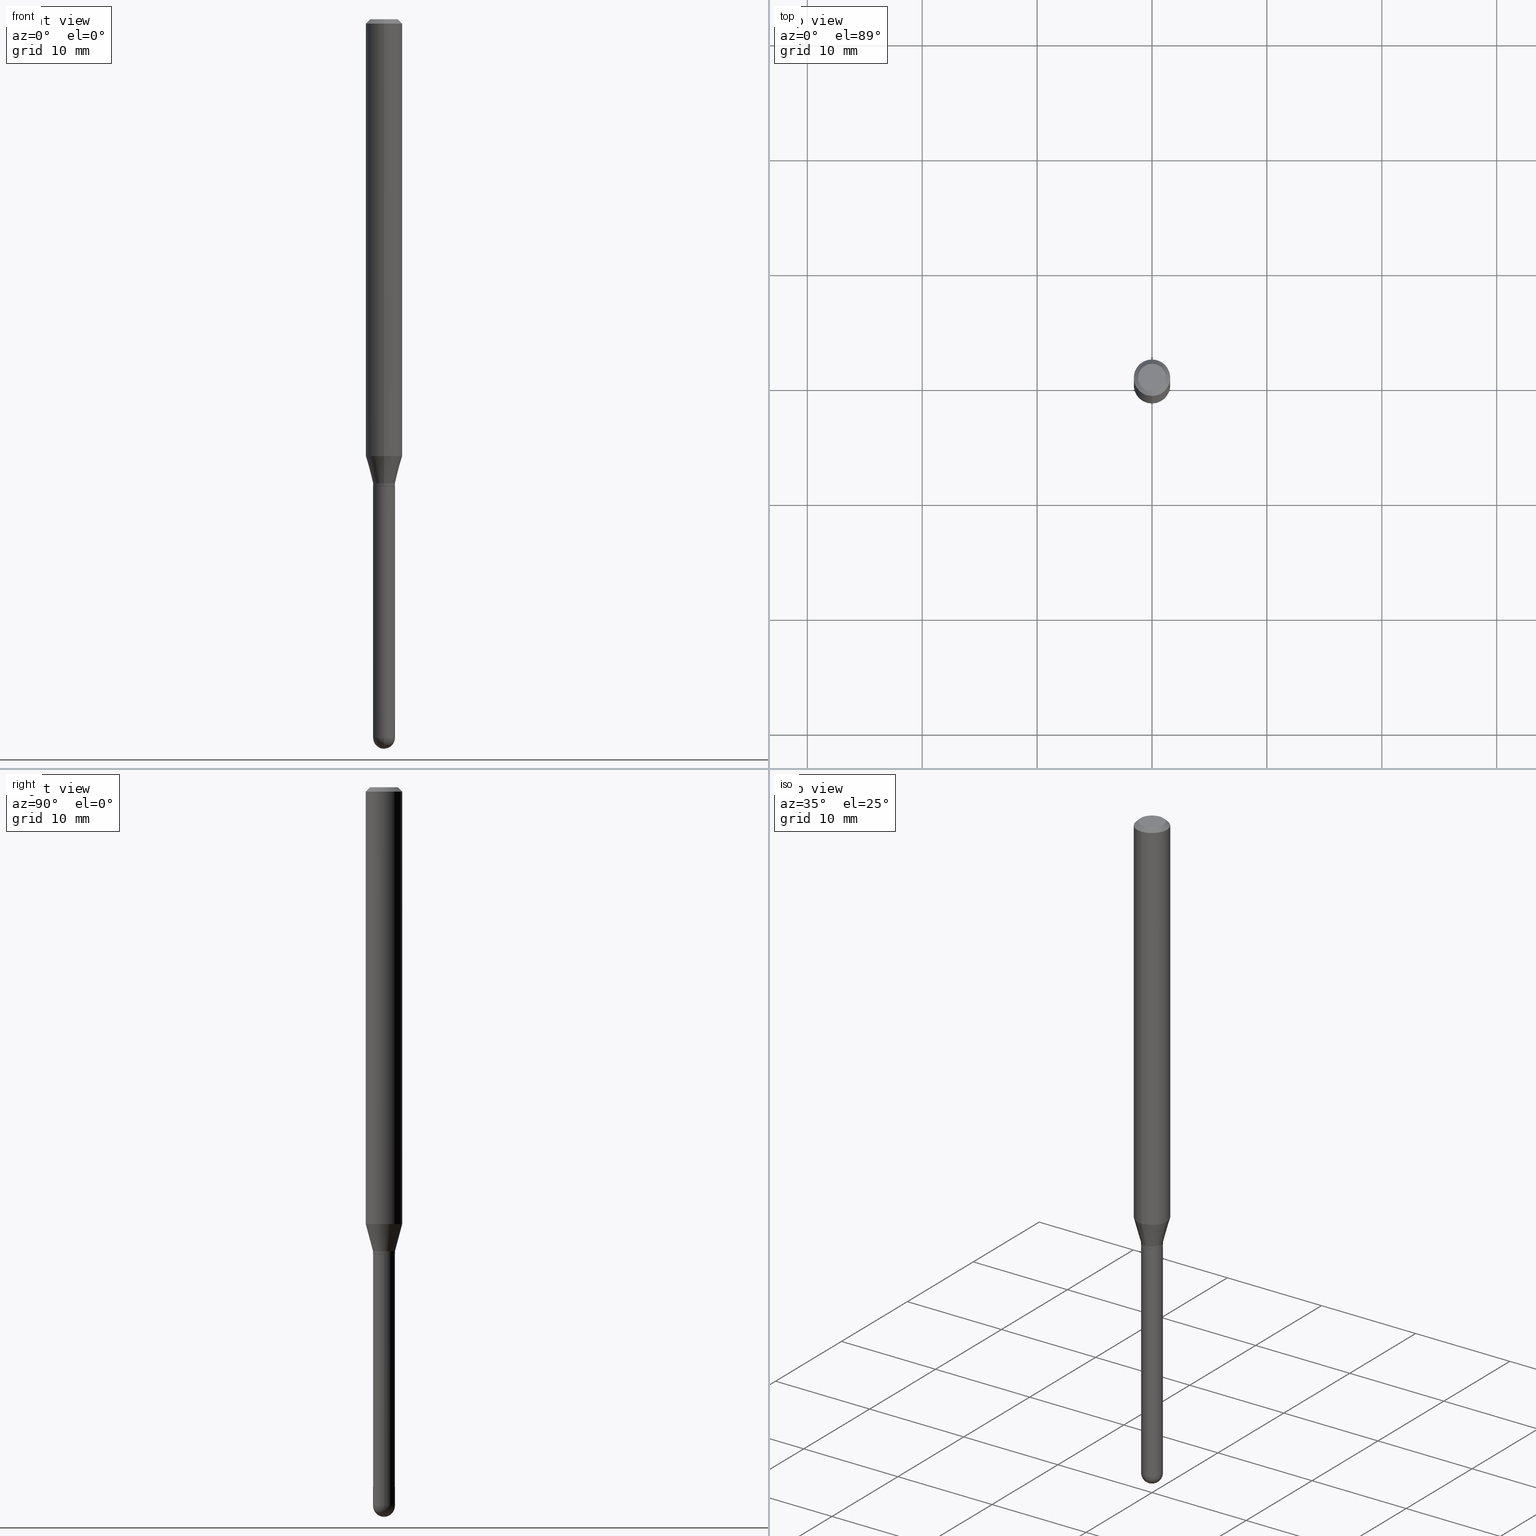
[diagram: canonical four-view strip — front | top / right | iso, engineering-drawing reading convention]
A machine part, canonical four-view strip (front | top / right | iso — engineering-drawing reading convention). The complete STEP part file that produces these views, byte-faithful:
ISO-10303-21;
HEADER;
FILE_DESCRIPTION (( 'STEP AP203' ),
    '1' );
FILE_NAME ('02789.STEP',
    '2024-03-07T21:33:03',
    ( '' ),
    ( '' ),
    'SwSTEP 2.0',
    'SolidWorks 2023',
    '' );
FILE_SCHEMA (( 'CONFIG_CONTROL_DESIGN' ));
ENDSEC;

DATA;
#1 = ORIENTED_EDGE ( 'NONE', *, *, #374, .F. ) ;
#2 = VECTOR ( 'NONE', #90, 39.37007874015748143 ) ;
#3 = CARTESIAN_POINT ( 'NONE',  ( 3.911429841874183289E-29, -5.584764046532069361E-15, -1.599500000000000144 ) ) ;
#4 = ADVANCED_FACE ( 'NONE', ( #22 ), #323, .T. ) ;
#5 = EDGE_CURVE ( 'NONE', #335, #242, #139, .T. ) ;
#6 = ORIENTED_EDGE ( 'NONE', *, *, #295, .F. ) ;
#7 = COORDINATED_UNIVERSAL_TIME_OFFSET ( 5, 0, .BEHIND. ) ;
#8 = VERTEX_POINT ( 'NONE', #108 ) ;
#9 = CARTESIAN_POINT ( 'NONE',  ( 6.018760061646477031E-29, -8.602365222398048274E-15, -2.462500000000000355 ) ) ;
#10 = CARTESIAN_POINT ( 'NONE',  ( -2.618611004131955586E-16, -0.03750000000000547340, -1.590000000000000302 ) ) ;
#11 = ORIENTED_EDGE ( 'NONE', *, *, #159, .F. ) ;
#12 = VERTEX_POINT ( 'NONE', #308 ) ;
#13 = VECTOR ( 'NONE', #482, 39.37007874015748143 ) ;
#14 = DIRECTION ( 'NONE',  ( -2.445468806185136597E-29, 3.491481338843145583E-15, 1.000000000000000000 ) ) ;
#15 = APPROVAL_DATE_TIME ( #21, #140 ) ;
#16 = CYLINDRICAL_SURFACE ( 'NONE', #334, 0.06250000000000000000 ) ;
#17 = ORIENTED_EDGE ( 'NONE', *, *, #458, .T. ) ;
#18 = FACE_OUTER_BOUND ( 'NONE', #346, .T. ) ;
#19 = SPHERICAL_SURFACE ( 'NONE', #27, 0.03749999999999963085 ) ;
#20 = AXIS2_PLACEMENT_3D ( 'NONE', #508, #212, #370 ) ;
#21 = DATE_AND_TIME ( #24, #34 ) ;
#22 = FACE_OUTER_BOUND ( 'NONE', #38, .T. ) ;
#23 = CARTESIAN_POINT ( 'NONE',  ( 3.888198467383526217E-29, -5.551594144411373285E-15, -1.590000000000000302 ) ) ;
#24 = CALENDAR_DATE ( 2024, 7, 3 ) ;
#25 = ADVANCED_FACE ( 'NONE', ( #471 ), #16, .T. ) ;
#26 = EDGE_LOOP ( 'NONE', ( #123, #196 ) ) ;
#27 = AXIS2_PLACEMENT_3D ( 'NONE', #59, #208, #282 ) ;
#28 = AXIS2_PLACEMENT_3D ( 'NONE', #333, #88, #85 ) ;
#29 = CC_DESIGN_PERSON_AND_ORGANIZATION_ASSIGNMENT ( #277, #454, ( #310 ) ) ;
#30 = CYLINDRICAL_SURFACE ( 'NONE', #441, 0.03749999999999999861 ) ;
#31 = CARTESIAN_POINT ( 'NONE',  ( 0.000000000000000000, 0.000000000000000000, 0.000000000000000000 ) ) ;
#32 = FACE_OUTER_BOUND ( 'NONE', #419, .T. ) ;
#33 = VECTOR ( 'NONE', #480, 39.37007874015748143 ) ;
#34 = LOCAL_TIME ( 16, 33, 3.000000000000000000, #286 ) ;
#35 = CARTESIAN_POINT ( 'NONE',  ( -0.03749999999999999861, -6.825617943615102854E-15, -2.462500000000000355 ) ) ;
#36 = EDGE_LOOP ( 'NONE', ( #110, #473, #402, #209 ) ) ;
#37 = DIRECTION ( 'NONE',  ( -1.000000000000000000, 6.982962677686265922E-15, -4.876176775795935793E-29 ) ) ;
#38 = EDGE_LOOP ( 'NONE', ( #1, #76, #315, #6 ) ) ;
#39 = DIRECTION ( 'NONE',  ( 1.000000000000000000, 0.000000000000000000, 0.000000000000000000 ) ) ;
#40 = EDGE_CURVE ( 'NONE', #232, #283, #258, .T. ) ;
#41 = VECTOR ( 'NONE', #240, 39.37007874015748143 ) ;
#42 = CIRCLE ( 'NONE', #28, 0.03749999999999992228 ) ;
#43 = APPROVAL_ROLE ( '' ) ;
#44 = DIRECTION ( 'NONE',  ( -2.445407841121714542E-29, 3.491568644283881835E-15, 1.000000000000000000 ) ) ;
#45 = DIRECTION ( 'NONE',  ( 2.438088387897960049E-29, -3.491481338843145188E-15, -1.000000000000000000 ) ) ;
#46 = DIRECTION ( 'NONE',  ( -4.937700262164674260E-15, -0.7071067811865632269, 0.7071067811865319186 ) ) ;
#47 = VERTEX_POINT ( 'NONE', #312 ) ;
#48 = EDGE_CURVE ( 'NONE', #66, #214, #197, .T. ) ;
#49 = DIRECTION ( 'NONE',  ( -2.445407841121714542E-29, 3.491568644283881835E-15, 1.000000000000000000 ) ) ;
#50 = DIRECTION ( 'NONE',  ( -2.445407841121714542E-29, 3.491568644283881835E-15, 1.000000000000000000 ) ) ;
#51 = DIRECTION ( 'NONE',  ( -2.445407841121714542E-29, 3.491568644283881835E-15, 1.000000000000000000 ) ) ;
#52 = AXIS2_PLACEMENT_3D ( 'NONE', #436, #50, #198 ) ;
#53 = ORIENTED_EDGE ( 'NONE', *, *, #511, .F. ) ;
#54 = AXIS2_PLACEMENT_3D ( 'NONE', #276, #92, #437 ) ;
#55 = ORIENTED_EDGE ( 'NONE', *, *, #60, .F. ) ;
#56 = COORDINATED_UNIVERSAL_TIME_OFFSET ( 5, 0, .BEHIND. ) ;
#57 = ORIENTED_EDGE ( 'NONE', *, *, #458, .F. ) ;
#58 = CARTESIAN_POINT ( 'NONE',  ( -2.583696190743526501E-16, -0.03700000000000558398, -1.600000000000000311 ) ) ;
#59 = CARTESIAN_POINT ( 'NONE',  ( 6.018760061646477031E-29, -8.602365222398048274E-15, -2.462500000000000355 ) ) ;
#60 = EDGE_CURVE ( 'NONE', #189, #304, #125, .T. ) ;
#61 = COORDINATED_UNIVERSAL_TIME_OFFSET ( 5, 0, .BEHIND. ) ;
#62 = VERTEX_POINT ( 'NONE', #182 ) ;
#63 = VECTOR ( 'NONE', #408, 39.37007874015748143 ) ;
#64 = AXIS2_PLACEMENT_3D ( 'NONE', #305, #45, #37 ) ;
#65 = PERSON_AND_ORGANIZATION_ROLE ( 'classification_officer' ) ;
#66 = VERTEX_POINT ( 'NONE', #328 ) ;
#67 = CC_DESIGN_DATE_AND_TIME_ASSIGNMENT ( #360, #236, ( #310 ) ) ;
#68 = AXIS2_PLACEMENT_3D ( 'NONE', #95, #243, #446 ) ;
#69 = DIRECTION ( 'NONE',  ( 2.445407841121714542E-29, -3.491568644283881835E-15, -1.000000000000000000 ) ) ;
#70 = LOCAL_TIME ( 16, 33, 3.000000000000000000, #287 ) ;
#71 = VERTEX_POINT ( 'NONE', #423 ) ;
#72 = FACE_OUTER_BOUND ( 'NONE', #146, .T. ) ;
#73 = DIRECTION ( 'NONE',  ( -6.982962677686265133E-15, -1.000000000000000000, 0.000000000000000000 ) ) ;
#74 = DIRECTION ( 'NONE',  ( 4.937700262164548042E-15, 0.7071067811865451302, -0.7071067811865499042 ) ) ;
#75 = PERSON ( 'UNSPECIFIED', 'UNSPECIFIED', 'UNSPECIFIED', ('UNSPECIFIED'), ('UNSPECIFIED'), ('UNSPECIFIED') ) ;
#76 = ORIENTED_EDGE ( 'NONE', *, *, #490, .T. ) ;
#77 = APPROVAL ( #388, 'UNSPECIFIED' ) ;
#78 = DIRECTION ( 'NONE',  ( -2.445407841121714542E-29, 3.491568644283881835E-15, 1.000000000000000000 ) ) ;
#79 = CIRCLE ( 'NONE', #468, 0.03749999999999999861 ) ;
#80 = DIRECTION ( 'NONE',  ( -6.982962677686265922E-15, -1.000000000000000000, 0.000000000000000000 ) ) ;
#81 = LINE ( 'NONE', #186, #498 ) ;
#82 = CARTESIAN_POINT ( 'NONE',  ( 3.911429841874183289E-29, -5.584764046532069361E-15, -1.599500000000000144 ) ) ;
#83 = ORIENTED_EDGE ( 'NONE', *, *, #354, .F. ) ;
#84 = FACE_OUTER_BOUND ( 'NONE', #117, .T. ) ;
#85 = DIRECTION ( 'NONE',  ( -6.982962677686265133E-15, -1.000000000000000000, 0.000000000000000000 ) ) ;
#86 = CARTESIAN_POINT ( 'NONE',  ( 3.660038809676187472E-29, -5.225826354946828234E-15, -1.496698729810778339 ) ) ;
#87 = FACE_OUTER_BOUND ( 'NONE', #239, .T. ) ;
#88 = DIRECTION ( 'NONE',  ( -2.445407841121714542E-29, 3.491568644283881835E-15, 1.000000000000000000 ) ) ;
#89 = EDGE_CURVE ( 'NONE', #66, #62, #175, .T. ) ;
#90 = DIRECTION ( 'NONE',  ( -2.445407841121714822E-29, 3.491568644283881835E-15, 1.000000000000000000 ) ) ;
#91 = ORIENTED_EDGE ( 'NONE', *, *, #5, .F. ) ;
#92 = DIRECTION ( 'NONE',  ( -2.445407841121714542E-29, 3.491568644283881835E-15, 1.000000000000000000 ) ) ;
#93 = ORIENTED_EDGE ( 'NONE', *, *, #466, .F. ) ;
#94 = CONICAL_SURFACE ( 'NONE', #378, 0.06250000000000000000, 0.7853981633974483900 ) ;
#95 = CARTESIAN_POINT ( 'NONE',  ( 3.912652545794744276E-29, -5.586509830854212671E-15, -1.600000000000000311 ) ) ;
#96 = AXIS2_PLACEMENT_3D ( 'NONE', #341, #469, #345 ) ;
#97 = EDGE_CURVE ( 'NONE', #142, #8, #79, .T. ) ;
#98 = ORIENTED_EDGE ( 'NONE', *, *, #217, .T. ) ;
#99 = PERSON_AND_ORGANIZATION ( #75, #163 ) ;
#100 = ORIENTED_EDGE ( 'NONE', *, *, #178, .F. ) ;
#101 = CARTESIAN_POINT ( 'NONE',  ( 3.888198467383526217E-29, -5.551594144411373285E-15, -1.590000000000000302 ) ) ;
#102 = PERSON_AND_ORGANIZATION ( #75, #163 ) ;
#103 = DESIGN_CONTEXT ( 'detailed design', #331, 'design' ) ;
#104 = ADVANCED_FACE ( 'NONE', ( #72 ), #94, .T. ) ;
#105 = ORIENTED_EDGE ( 'NONE', *, *, #89, .F. ) ;
#106 = CONICAL_SURFACE ( 'NONE', #218, 0.03749999999999992228, 0.2617993877991505736 ) ;
#107 = SHAPE_DEFINITION_REPRESENTATION ( #201, #289 ) ;
#108 = CARTESIAN_POINT ( 'NONE',  ( 2.618611004132938704E-16, 0.03749999999999121397, -2.462500000000000355 ) ) ;
#109 = PERSON_AND_ORGANIZATION ( #75, #163 ) ;
#110 = ORIENTED_EDGE ( 'NONE', *, *, #133, .T. ) ;
#111 = DIRECTION ( 'NONE',  ( 1.000000000000000000, -6.982962677686266711E-15, 4.876176775795935793E-29 ) ) ;
#112 = DIRECTION ( 'NONE',  ( 1.000000000000000000, -6.982962677686266711E-15, 4.876176775795935793E-29 ) ) ;
#113 =( GEOMETRIC_REPRESENTATION_CONTEXT ( 3 ) GLOBAL_UNCERTAINTY_ASSIGNED_CONTEXT ( ( #284 ) ) GLOBAL_UNIT_ASSIGNED_CONTEXT ( ( #300, #230, #195 ) ) REPRESENTATION_CONTEXT ( 'NONE', 'WORKASPACE' ) );
#114 = ADVANCED_FACE ( 'NONE', ( #87 ), #477, .T. ) ;
#115 = DIRECTION ( 'NONE',  ( -2.445407841121714262E-29, 3.491568644283881835E-15, 1.000000000000000000 ) ) ;
#116 = DIRECTION ( 'NONE',  ( -2.445468806185136597E-29, 3.491481338843145583E-15, 1.000000000000000000 ) ) ;
#117 = EDGE_LOOP ( 'NONE', ( #391, #447, #481, #105 ) ) ;
#118 = CARTESIAN_POINT ( 'NONE',  ( -4.364351673553916201E-16, -0.06250000000000000000, 2.182230402677425900E-16 ) ) ;
#119 = PLANE ( 'NONE',  #349 ) ;
#120 = AXIS2_PLACEMENT_3D ( 'NONE', #292, #460, #253 ) ;
#121 = CARTESIAN_POINT ( 'NONE',  ( -4.364351673553553325E-16, -0.06250000000000525968, -1.496698729810778117 ) ) ;
#122 = ORIENTED_EDGE ( 'NONE', *, *, #410, .F. ) ;
#123 = ORIENTED_EDGE ( 'NONE', *, *, #178, .T. ) ;
#124 = MECHANICAL_CONTEXT ( 'NONE', #224, 'mechanical' ) ;
#125 = CIRCLE ( 'NONE', #68, 0.03699999999999999817 ) ;
#126 = ORIENTED_EDGE ( 'NONE', *, *, #354, .T. ) ;
#127 = APPROVAL_PERSON_ORGANIZATION ( #225, #77, #43 ) ;
#128 = APPLICATION_PROTOCOL_DEFINITION ( 'international standard', 'config_control_design', 1994, #331 ) ;
#129 = CARTESIAN_POINT ( 'NONE',  ( 4.440892098500625669E-16, 0.06250000000000000000, -2.182230402677425900E-16 ) ) ;
#130 = MANIFOLD_SOLID_BREP ( 'Body-Move/Copy2[2]', #299 ) ;
#131 = APPROVAL_DATE_TIME ( #274, #77 ) ;
#132 = AXIS2_PLACEMENT_3D ( 'NONE', #347, #14, #164 ) ;
#133 = EDGE_CURVE ( 'NONE', #203, #214, #147, .T. ) ;
#134 = LOCAL_TIME ( 16, 33, 3.000000000000000000, #7 ) ;
#135 = EDGE_CURVE ( 'NONE', #47, #266, #226, .T. ) ;
#136 = DIRECTION ( 'NONE',  ( -6.982962677686265133E-15, -1.000000000000000000, 0.000000000000000000 ) ) ;
#137 = APPROVAL_ROLE ( '' ) ;
#138 = VERTEX_POINT ( 'NONE', #278 ) ;
#139 = LINE ( 'NONE', #493, #63 ) ;
#140 = APPROVAL ( #393, 'UNSPECIFIED' ) ;
#141 = AXIS2_PLACEMENT_3D ( 'NONE', #215, #69, #144 ) ;
#142 = VERTEX_POINT ( 'NONE', #204 ) ;
#143 = DIRECTION ( 'NONE',  ( -2.445407841121714542E-29, 3.491568644283881835E-15, 1.000000000000000000 ) ) ;
#144 = DIRECTION ( 'NONE',  ( 6.982962677686265922E-15, 1.000000000000000000, -3.483106191921935554E-15 ) ) ;
#145 = EDGE_CURVE ( 'NONE', #203, #232, #322, .T. ) ;
#146 = EDGE_LOOP ( 'NONE', ( #91, #83, #503, #443 ) ) ;
#147 = CIRCLE ( 'NONE', #431, 0.03749999999999992228 ) ;
#148 = CARTESIAN_POINT ( 'NONE',  ( 8.024429778485284726E-45, -1.145733113784620250E-30, -3.281428007037247014E-16 ) ) ;
#149 = LOCAL_TIME ( 16, 33, 3.000000000000000000, #61 ) ;
#150 = DIRECTION ( 'NONE',  ( -2.445407841121714542E-29, 3.491568644283881835E-15, 1.000000000000000000 ) ) ;
#151 = DIRECTION ( 'NONE',  ( -6.982962677686265922E-15, -1.000000000000000000, 3.491568644283882229E-15 ) ) ;
#152 = AXIS2_PLACEMENT_3D ( 'NONE', #31, #411, #112 ) ;
#153 = ADVANCED_FACE ( 'NONE', ( #18 ), #485, .T. ) ;
#154 = ORIENTED_EDGE ( 'NONE', *, *, #501, .T. ) ;
#155 = DIRECTION ( 'NONE',  ( -1.000000000000000000, 7.105427357601001070E-15, -4.926315508542082329E-29 ) ) ;
#156 = EDGE_CURVE ( 'NONE', #387, #47, #486, .T. ) ;
#157 = LENGTH_MEASURE_WITH_UNIT ( LENGTH_MEASURE( 0.02539999999999999897 ), #385 );
#158 = VECTOR ( 'NONE', #46, 39.37007874015748143 ) ;
#159 = EDGE_CURVE ( 'NONE', #189, #62, #170, .T. ) ;
#160 = EDGE_LOOP ( 'NONE', ( #425, #172, #100, #57, #438 ) ) ;
#161 = AXIS2_PLACEMENT_3D ( 'NONE', #3, #190, #192 ) ;
#162 = ORIENTED_EDGE ( 'NONE', *, *, #501, .F. ) ;
#163 = ORGANIZATION ( 'UNSPECIFIED', 'UNSPECIFIED', '' ) ;
#164 = DIRECTION ( 'NONE',  ( 1.000000000000000000, -6.982962677686268288E-15, 0.000000000000000000 ) ) ;
#165 = PERSON_AND_ORGANIZATION ( #75, #163 ) ;
#166 = CC_DESIGN_PERSON_AND_ORGANIZATION_ASSIGNMENT ( #267, #426, ( #362 ) ) ;
#167 = CARTESIAN_POINT ( 'NONE',  ( 3.912652545794744276E-29, -5.586509830854212671E-15, -1.600000000000000311 ) ) ;
#168 = CIRCLE ( 'NONE', #306, 0.06250000000000000000 ) ;
#169 = CC_DESIGN_SECURITY_CLASSIFICATION ( #311, ( #407 ) ) ;
#170 = LINE ( 'NONE', #58, #158 ) ;
#171 = DIRECTION ( 'NONE',  ( -2.445407841121714542E-29, 3.491568644283881835E-15, 1.000000000000000000 ) ) ;
#172 = ORIENTED_EDGE ( 'NONE', *, *, #156, .T. ) ;
#173 = DIRECTION ( 'NONE',  ( -2.445468806185136597E-29, 3.491481338843145583E-15, 1.000000000000000000 ) ) ;
#174 = EDGE_CURVE ( 'NONE', #12, #242, #279, .T. ) ;
#175 = CIRCLE ( 'NONE', #317, 0.03750000000000019290 ) ;
#176 = CARTESIAN_POINT ( 'NONE',  ( 6.018760061646477031E-29, -8.602365222398048274E-15, -2.462500000000000355 ) ) ;
#177 = AXIS2_PLACEMENT_3D ( 'NONE', #390, #271, #509 ) ;
#178 = EDGE_CURVE ( 'NONE', #266, #47, #369, .T. ) ;
#179 = FACE_OUTER_BOUND ( 'NONE', #470, .T. ) ;
#180 = ORIENTED_EDGE ( 'NONE', *, *, #227, .F. ) ;
#181 = CARTESIAN_POINT ( 'NONE',  ( 3.912652545794744276E-29, -5.586509830854212671E-15, -1.600000000000000311 ) ) ;
#182 = CARTESIAN_POINT ( 'NONE',  ( -2.618611004131981224E-16, -0.03750000000000591055, -1.599500000000000144 ) ) ;
#183 = AXIS2_PLACEMENT_3D ( 'NONE', #273, #49, #318 ) ;
#184 = FACE_OUTER_BOUND ( 'NONE', #207, .T. ) ;
#185 = APPROVAL_PERSON_ORGANIZATION ( #99, #219, #137 ) ;
#186 = CARTESIAN_POINT ( 'NONE',  ( 2.664535259100758689E-16, 0.03749999999999436423, -1.590000000000000302 ) ) ;
#187 = CARTESIAN_POINT ( 'NONE',  ( 0.03749999999999999861, -2.618611004132350016E-16, 1.828566290923475922E-30 ) ) ;
#188 = ORIENTED_EDGE ( 'NONE', *, *, #511, .T. ) ;
#189 = VERTEX_POINT ( 'NONE', #342 ) ;
#190 = DIRECTION ( 'NONE',  ( -2.445407841121714542E-29, 3.491568644283881835E-15, 1.000000000000000000 ) ) ;
#191 = CIRCLE ( 'NONE', #120, 0.03749999999999999861 ) ;
#192 = DIRECTION ( 'NONE',  ( -6.982962677686265922E-15, -1.000000000000000000, 0.000000000000000000 ) ) ;
#193 = ORIENTED_EDGE ( 'NONE', *, *, #174, .F. ) ;
#194 = CARTESIAN_POINT ( 'NONE',  ( 0.000000000000000000, 0.000000000000000000, 0.000000000000000000 ) ) ;
#195 =( NAMED_UNIT ( * ) SI_UNIT ( $, .STERADIAN. ) SOLID_ANGLE_UNIT ( ) );
#196 = ORIENTED_EDGE ( 'NONE', *, *, #135, .T. ) ;
#197 = LINE ( 'NONE', #205, #357 ) ;
#198 = DIRECTION ( 'NONE',  ( -6.982962677686265922E-15, -1.000000000000000000, 3.483106191921935554E-15 ) ) ;
#199 = AXIS2_PLACEMENT_3D ( 'NONE', #223, #373, #151 ) ;
#200 = AXIS2_PLACEMENT_3D ( 'NONE', #507, #150, #421 ) ;
#201 = PRODUCT_DEFINITION_SHAPE ( 'NONE', 'NONE',  #310 ) ;
#202 = ORIENTED_EDGE ( 'NONE', *, *, #351, .F. ) ;
#203 = VERTEX_POINT ( 'NONE', #10 ) ;
#204 = CARTESIAN_POINT ( 'NONE',  ( 0.03749999999999999861, -7.353932569938374479E-15, -2.462500000000000355 ) ) ;
#205 = CARTESIAN_POINT ( 'NONE',  ( 2.664535259100379543E-16, 0.03750000000000005412, -1.309338241606457759E-16 ) ) ;
#206 = VECTOR ( 'NONE', #353, 39.37007874015748854 ) ;
#207 = EDGE_LOOP ( 'NONE', ( #343, #365, #237, #319 ) ) ;
#208 = DIRECTION ( 'NONE',  ( -1.000000000000000000, 6.982962677686265922E-15, -4.883557194083112901E-29 ) ) ;
#209 = ORIENTED_EDGE ( 'NONE', *, *, #145, .F. ) ;
#210 = CIRCLE ( 'NONE', #496, 0.03699999999999999817 ) ;
#211 = EDGE_CURVE ( 'NONE', #304, #66, #338, .T. ) ;
#212 = DIRECTION ( 'NONE',  ( -2.445407841121714542E-29, 3.491568644283881835E-15, 1.000000000000000000 ) ) ;
#213 = AXIS2_PLACEMENT_3D ( 'NONE', #176, #298, #504 ) ;
#214 = VERTEX_POINT ( 'NONE', #472 ) ;
#215 = CARTESIAN_POINT ( 'NONE',  ( 3.668111761682651932E-31, -5.237352966425937531E-17, -0.01500000000000032904 ) ) ;
#216 = FACE_OUTER_BOUND ( 'NONE', #352, .T. ) ;
#217 = EDGE_CURVE ( 'NONE', #62, #203, #429, .T. ) ;
#218 = AXIS2_PLACEMENT_3D ( 'NONE', #337, #510, #427 ) ;
#219 = APPROVAL ( #355, 'UNSPECIFIED' ) ;
#220 = CARTESIAN_POINT ( 'NONE',  ( 2.646771690706770467E-16, 0.03699999999999440542, -1.600000000000000311 ) ) ;
#221 = CARTESIAN_POINT ( 'NONE',  ( 6.021966935230899318E-29, -8.597772796901246653E-15, -2.462500000000000355 ) ) ;
#222 = ORIENTED_EDGE ( 'NONE', *, *, #227, .T. ) ;
#223 = CARTESIAN_POINT ( 'NONE',  ( 0.000000000000000000, 0.000000000000000000, 0.000000000000000000 ) ) ;
#224 = APPLICATION_CONTEXT ( 'configuration controlled 3d designs of mechanical parts and assemblies' ) ;
#225 = PERSON_AND_ORGANIZATION ( #75, #163 ) ;
#226 = CIRCLE ( 'NONE', #476, 0.03749999999999999861 ) ;
#227 = EDGE_CURVE ( 'NONE', #232, #242, #379, .T. ) ;
#228 = CIRCLE ( 'NONE', #177, 0.03749999999999999861 ) ;
#229 = ORIENTED_EDGE ( 'NONE', *, *, #500, .T. ) ;
#230 =( NAMED_UNIT ( * ) PLANE_ANGLE_UNIT ( ) SI_UNIT ( $, .RADIAN. ) );
#231 = LINE ( 'NONE', #187, #13 ) ;
#232 = VERTEX_POINT ( 'NONE', #121 ) ;
#233 = CC_DESIGN_PERSON_AND_ORGANIZATION_ASSIGNMENT ( #102, #350, ( #407 ) ) ;
#234 = AXIS2_PLACEMENT_3D ( 'NONE', #442, #241, #314 ) ;
#235 = LOCAL_TIME ( 16, 33, 3.000000000000000000, #56 ) ;
#236 = DATE_TIME_ROLE ( 'creation_date' ) ;
#237 = ORIENTED_EDGE ( 'NONE', *, *, #492, .T. ) ;
#238 = CALENDAR_DATE ( 2024, 7, 3 ) ;
#239 = EDGE_LOOP ( 'NONE', ( #430, #247, #222, #193 ) ) ;
#240 = DIRECTION ( 'NONE',  ( -2.445468806185136877E-29, 3.491481338843145188E-15, 1.000000000000000000 ) ) ;
#241 = DIRECTION ( 'NONE',  ( -1.000000000000000000, 6.982962677686265922E-15, -4.883557194083112901E-29 ) ) ;
#242 = VERTEX_POINT ( 'NONE', #290 ) ;
#243 = DIRECTION ( 'NONE',  ( -2.445407841121714542E-29, 3.491568644283881835E-15, 1.000000000000000000 ) ) ;
#244 = CC_DESIGN_DATE_AND_TIME_ASSIGNMENT ( #367, #397, ( #311 ) ) ;
#245 = APPROVAL_PERSON_ORGANIZATION ( #109, #140, #313 ) ;
#246 = ORIENTED_EDGE ( 'NONE', *, *, #410, .T. ) ;
#247 = ORIENTED_EDGE ( 'NONE', *, *, #295, .T. ) ;
#248 = DIRECTION ( 'NONE',  ( -2.445407841121714822E-29, 3.491568644283881835E-15, 1.000000000000000000 ) ) ;
#249 = FACE_OUTER_BOUND ( 'NONE', #160, .T. ) ;
#250 = VECTOR ( 'NONE', #400, 39.37007874015748143 ) ;
#251 = CARTESIAN_POINT ( 'NONE',  ( 3.668111761682651932E-31, -5.237352966425937531E-17, -0.01500000000000032904 ) ) ;
#252 = EDGE_CURVE ( 'NONE', #8, #387, #505, .T. ) ;
#253 = DIRECTION ( 'NONE',  ( 1.000000000000000000, -6.982962677686242256E-15, 0.000000000000000000 ) ) ;
#254 = LINE ( 'NONE', #383, #261 ) ;
#255 = PLANE ( 'NONE',  #64 ) ;
#256 = DIRECTION ( 'NONE',  ( -2.445407841121714542E-29, 3.491568644283881835E-15, 1.000000000000000000 ) ) ;
#257 = EDGE_LOOP ( 'NONE', ( #93, #246, #272, #53 ) ) ;
#258 = CIRCLE ( 'NONE', #439, 0.06250000000000000000 ) ;
#259 = CC_DESIGN_PERSON_AND_ORGANIZATION_ASSIGNMENT ( #165, #65, ( #311 ) ) ;
#260 = FACE_OUTER_BOUND ( 'NONE', #484, .T. ) ;
#261 = VECTOR ( 'NONE', #74, 39.37007874015748143 ) ;
#262 = ADVANCED_FACE ( 'NONE', ( #494 ), #19, .T. ) ;
#263 = ORIENTED_EDGE ( 'NONE', *, *, #406, .T. ) ;
#264 = ORIENTED_EDGE ( 'NONE', *, *, #398, .T. ) ;
#265 = ADVANCED_FACE ( 'NONE', ( #403 ), #405, .T. ) ;
#266 = VERTEX_POINT ( 'NONE', #368 ) ;
#267 = PERSON_AND_ORGANIZATION ( #75, #163 ) ;
#268 = CC_DESIGN_PERSON_AND_ORGANIZATION_ASSIGNMENT ( #440, #495, ( #407 ) ) ;
#269 = ORIENTED_EDGE ( 'NONE', *, *, #398, .F. ) ;
#270 = AXIS2_PLACEMENT_3D ( 'NONE', #167, #288, #316 ) ;
#271 = DIRECTION ( 'NONE',  ( -2.445468806185136597E-29, 3.491481338843145583E-15, 1.000000000000000000 ) ) ;
#272 = ORIENTED_EDGE ( 'NONE', *, *, #97, .F. ) ;
#273 = CARTESIAN_POINT ( 'NONE',  ( 0.000000000000000000, 0.000000000000000000, 0.000000000000000000 ) ) ;
#274 = DATE_AND_TIME ( #433, #134 ) ;
#275 = ADVANCED_FACE ( 'NONE', ( #364 ), #106, .T. ) ;
#276 = CARTESIAN_POINT ( 'NONE',  ( 3.912652545794744276E-29, -5.586509830854212671E-15, -1.600000000000000311 ) ) ;
#277 = PERSON_AND_ORGANIZATION ( #75, #163 ) ;
#278 = CARTESIAN_POINT ( 'NONE',  ( 6.112068578670630349E-29, -8.730999559856264176E-15, -2.500000000000000000 ) ) ;
#279 = CIRCLE ( 'NONE', #52, 0.06250000000000000000 ) ;
#280 = ORIENTED_EDGE ( 'NONE', *, *, #217, .F. ) ;
#281 = AXIS2_PLACEMENT_3D ( 'NONE', #194, #307, #39 ) ;
#282 = DIRECTION ( 'NONE',  ( 6.982962677686265922E-15, 1.000000000000000000, 0.000000000000000000 ) ) ;
#283 = VERTEX_POINT ( 'NONE', #424 ) ;
#284 = UNCERTAINTY_MEASURE_WITH_UNIT (LENGTH_MEASURE( 1.000000000000000082E-05 ), #300, 'distance_accuracy_value', 'NONE');
#285 = CARTESIAN_POINT ( 'NONE',  ( 6.021966935230899318E-29, -8.597772796901246653E-15, -2.462500000000000355 ) ) ;
#286 = COORDINATED_UNIVERSAL_TIME_OFFSET ( 5, 0, .BEHIND. ) ;
#287 = COORDINATED_UNIVERSAL_TIME_OFFSET ( 5, 0, .BEHIND. ) ;
#288 = DIRECTION ( 'NONE',  ( -2.445407841121714542E-29, 3.491568644283881835E-15, 1.000000000000000000 ) ) ;
#289 = ADVANCED_BREP_SHAPE_REPRESENTATION ( '02789', ( #457, #130, #281 ), #113 ) ;
#290 = CARTESIAN_POINT ( 'NONE',  ( -4.364351673553912750E-16, -0.06250000000000005551, -0.01500000000000011047 ) ) ;
#291 = CYLINDRICAL_SURFACE ( 'NONE', #152, 0.03749999999999999861 ) ;
#292 = CARTESIAN_POINT ( 'NONE',  ( 6.021966935230899318E-29, -8.597772796901246653E-15, -2.462500000000000355 ) ) ;
#293 = CLOSED_SHELL ( 'NONE', ( #348, #262, #456, #265, #372 ) ) ;
#294 = DIRECTION ( 'NONE',  ( -6.982962677686265922E-15, -1.000000000000000000, 4.370956789862821150E-15 ) ) ;
#295 = EDGE_CURVE ( 'NONE', #283, #232, #168, .T. ) ;
#296 = CARTESIAN_POINT ( 'NONE',  ( -2.664535259099760287E-16, -0.03750000000000841549, -2.462500000000000355 ) ) ;
#297 = ORIENTED_EDGE ( 'NONE', *, *, #490, .F. ) ;
#298 = DIRECTION ( 'NONE',  ( 1.000000000000000000, -6.982962677686265922E-15, 4.883557194083112340E-29 ) ) ;
#299 = CLOSED_SHELL ( 'NONE', ( #340, #153, #301, #25, #275, #4, #114, #104, #384, #413, #506, #432 ) ) ;
#300 =( CONVERSION_BASED_UNIT ( 'INCH', #157 ) LENGTH_UNIT ( ) NAMED_UNIT ( #396 ) );
#301 = ADVANCED_FACE ( 'NONE', ( #184 ), #344, .T. ) ;
#302 = EDGE_LOOP ( 'NONE', ( #451, #264, #188, #17, #361 ) ) ;
#303 = ORIENTED_EDGE ( 'NONE', *, *, #60, .T. ) ;
#304 = VERTEX_POINT ( 'NONE', #220 ) ;
#305 = CARTESIAN_POINT ( 'NONE',  ( 2.618611004132740996E-16, 0.03749999999999441280, -1.600000000000000089 ) ) ;
#306 = AXIS2_PLACEMENT_3D ( 'NONE', #499, #78, #294 ) ;
#307 = DIRECTION ( 'NONE',  ( 0.000000000000000000, 0.000000000000000000, 1.000000000000000000 ) ) ;
#308 = CARTESIAN_POINT ( 'NONE',  ( 4.440892098500993968E-16, 0.06249999999999993755, -0.01500000000000054588 ) ) ;
#309 = CARTESIAN_POINT ( 'NONE',  ( 2.629008122312761537E-16, 0.03699999999999440542, -1.600000000000000311 ) ) ;
#310 = PRODUCT_DEFINITION ( 'UNKNOWN', '', #407, #103 ) ;
#311 = SECURITY_CLASSIFICATION ( '', '', #404 ) ;
#312 = CARTESIAN_POINT ( 'NONE',  ( -0.03749999999999999861, -6.825617943615102854E-15, -1.600000000000000089 ) ) ;
#313 = APPROVAL_ROLE ( '' ) ;
#314 = DIRECTION ( 'NONE',  ( 6.982962677686265922E-15, 1.000000000000000000, 0.000000000000000000 ) ) ;
#315 = ORIENTED_EDGE ( 'NONE', *, *, #145, .T. ) ;
#316 = DIRECTION ( 'NONE',  ( -6.982962677686265133E-15, -1.000000000000000000, 0.000000000000000000 ) ) ;
#317 = AXIS2_PLACEMENT_3D ( 'NONE', #82, #256, #80 ) ;
#318 = DIRECTION ( 'NONE',  ( -6.982962677686265922E-15, -1.000000000000000000, 3.491568644283881440E-15 ) ) ;
#319 = ORIENTED_EDGE ( 'NONE', *, *, #416, .F. ) ;
#320 = APPROVAL_DATE_TIME ( #483, #219 ) ;
#321 = DIRECTION ( 'NONE',  ( -6.982962677686265133E-15, -1.000000000000000000, 0.000000000000000000 ) ) ;
#322 = LINE ( 'NONE', #497, #206 ) ;
#323 = CONICAL_SURFACE ( 'NONE', #392, 0.03749999999999992228, 0.2617993877991505736 ) ;
#324 = DIRECTION ( 'NONE',  ( 1.839019923739602287E-15, 0.2588190451025252359, 0.9659258262890670910 ) ) ;
#325 = CARTESIAN_POINT ( 'NONE',  ( 3.316907271900976096E-16, 0.04749999999999999362, -3.299209109553467734E-16 ) ) ;
#326 = DIRECTION ( 'NONE',  ( 6.982962677686265922E-15, 1.000000000000000000, -3.483106191921935554E-15 ) ) ;
#327 = DIRECTION ( 'NONE',  ( 2.445407841121714262E-29, -3.491568644283881835E-15, -1.000000000000000000 ) ) ;
#328 = CARTESIAN_POINT ( 'NONE',  ( 2.664535259100771015E-16, 0.03749999999999447525, -1.599500000000000144 ) ) ;
#329 = CYLINDRICAL_SURFACE ( 'NONE', #200, 0.03750000000000005412 ) ;
#330 = CIRCLE ( 'NONE', #395, 0.03749999999999963085 ) ;
#331 = APPLICATION_CONTEXT ( 'configuration controlled 3d designs of mechanical parts and assemblies' ) ;
#332 = PLANE ( 'NONE',  #415 ) ;
#333 = CARTESIAN_POINT ( 'NONE',  ( 3.888198467383526217E-29, -5.551594144411373285E-15, -1.590000000000000302 ) ) ;
#334 = AXIS2_PLACEMENT_3D ( 'NONE', #394, #51, #428 ) ;
#335 = VERTEX_POINT ( 'NONE', #418 ) ;
#336 = AXIS2_PLACEMENT_3D ( 'NONE', #148, #143, #420 ) ;
#337 = CARTESIAN_POINT ( 'NONE',  ( 3.888198467383526217E-29, -5.551594144411373285E-15, -1.590000000000000302 ) ) ;
#338 = LINE ( 'NONE', #309, #33 ) ;
#339 = ORIENTED_EDGE ( 'NONE', *, *, #466, .T. ) ;
#340 = ADVANCED_FACE ( 'NONE', ( #216 ), #380, .T. ) ;
#341 = CARTESIAN_POINT ( 'NONE',  ( 3.668111761682651932E-31, -5.237352966425937531E-17, -0.01500000000000032904 ) ) ;
#342 = CARTESIAN_POINT ( 'NONE',  ( -2.583696190743526501E-16, -0.03700000000000558398, -1.600000000000000311 ) ) ;
#343 = ORIENTED_EDGE ( 'NONE', *, *, #406, .F. ) ;
#344 = CONICAL_SURFACE ( 'NONE', #141, 0.06250000000000000000, 0.7853981633974483900 ) ;
#345 = DIRECTION ( 'NONE',  ( -6.982962677686265922E-15, -1.000000000000000000, 3.483106191921935554E-15 ) ) ;
#346 = EDGE_LOOP ( 'NONE', ( #303, #363, #162, #11 ) ) ;
#347 = CARTESIAN_POINT ( 'NONE',  ( 3.912750089896218667E-29, -5.586370142149033090E-15, -1.600000000000000089 ) ) ;
#348 = ADVANCED_FACE ( 'NONE', ( #249 ), #291, .T. ) ;
#349 = AXIS2_PLACEMENT_3D ( 'NONE', #464, #115, #376 ) ;
#350 = PERSON_AND_ORGANIZATION_ROLE ( 'creator' ) ;
#351 = EDGE_CURVE ( 'NONE', #304, #189, #210, .T. ) ;
#352 = EDGE_LOOP ( 'NONE', ( #154, #491, #414, #280 ) ) ;
#353 = DIRECTION ( 'NONE',  ( -1.807323732225332111E-15, -0.2588190451025184635, 0.9659258262890689783 ) ) ;
#354 = EDGE_CURVE ( 'NONE', #71, #335, #461, .T. ) ;
#355 = APPROVAL_STATUS ( 'not_yet_approved' ) ;
#356 = DIRECTION ( 'NONE',  ( -2.445407841121714822E-29, 3.491568644283881835E-15, 1.000000000000000000 ) ) ;
#357 = VECTOR ( 'NONE', #356, 39.37007874015748143 ) ;
#358 = EDGE_LOOP ( 'NONE', ( #371, #229, #399, #180 ) ) ;
#359 = CIRCLE ( 'NONE', #213, 0.03749999999999963085 ) ;
#360 = DATE_AND_TIME ( #445, #235 ) ;
#361 = ORIENTED_EDGE ( 'NONE', *, *, #135, .F. ) ;
#362 = PRODUCT ( '02789', '02789', '', ( #124 ) ) ;
#363 = ORIENTED_EDGE ( 'NONE', *, *, #211, .T. ) ;
#364 = FACE_OUTER_BOUND ( 'NONE', #36, .T. ) ;
#365 = ORIENTED_EDGE ( 'NONE', *, *, #5, .T. ) ;
#366 = DIRECTION ( 'NONE',  ( 1.000000000000000000, -6.982962677686242256E-15, 0.000000000000000000 ) ) ;
#367 = DATE_AND_TIME ( #238, #70 ) ;
#368 = CARTESIAN_POINT ( 'NONE',  ( 0.03749999999999999861, -5.848231242562268092E-15, -1.600000000000000089 ) ) ;
#369 = CIRCLE ( 'NONE', #132, 0.03749999999999999861 ) ;
#370 = DIRECTION ( 'NONE',  ( -6.982962677686266711E-15, -1.000000000000000000, 3.491568644283882624E-15 ) ) ;
#371 = ORIENTED_EDGE ( 'NONE', *, *, #40, .T. ) ;
#372 = ADVANCED_FACE ( 'NONE', ( #455 ), #30, .T. ) ;
#373 = DIRECTION ( 'NONE',  ( -2.445407841121714542E-29, 3.491568644283881835E-15, 1.000000000000000000 ) ) ;
#374 = EDGE_CURVE ( 'NONE', #214, #283, #81, .T. ) ;
#375 = ORIENTED_EDGE ( 'NONE', *, *, #252, .F. ) ;
#376 = DIRECTION ( 'NONE',  ( -6.982962677686265922E-15, -1.000000000000000000, 3.491568644283881835E-15 ) ) ;
#377 = DIRECTION ( 'NONE',  ( -2.445468806185136597E-29, 3.491481338843145583E-15, 1.000000000000000000 ) ) ;
#378 = AXIS2_PLACEMENT_3D ( 'NONE', #251, #459, #326 ) ;
#379 = LINE ( 'NONE', #118, #250 ) ;
#380 = CYLINDRICAL_SURFACE ( 'NONE', #199, 0.03750000000000005412 ) ;
#381 = DIRECTION ( 'NONE',  ( -2.445468806185136597E-29, 3.491481338843145583E-15, 1.000000000000000000 ) ) ;
#382 = ORIENTED_EDGE ( 'NONE', *, *, #48, .F. ) ;
#383 = CARTESIAN_POINT ( 'NONE',  ( 4.364351673553919652E-16, 0.06249999999999995143, -0.01500000000000054588 ) ) ;
#384 = ADVANCED_FACE ( 'NONE', ( #179 ), #332, .F. ) ;
#385 =( LENGTH_UNIT ( ) NAMED_UNIT ( * ) SI_UNIT ( $, .METRE. ) );
#386 = DIRECTION ( 'NONE',  ( -6.982962677686265922E-15, -1.000000000000000000, 4.370956789862821150E-15 ) ) ;
#387 = VERTEX_POINT ( 'NONE', #35 ) ;
#388 = APPROVAL_STATUS ( 'not_yet_approved' ) ;
#389 = CC_DESIGN_APPROVAL ( #219, ( #407 ) ) ;
#390 = CARTESIAN_POINT ( 'NONE',  ( 6.021966935230899318E-29, -8.597772796901246653E-15, -2.462500000000000355 ) ) ;
#391 = ORIENTED_EDGE ( 'NONE', *, *, #211, .F. ) ;
#392 = AXIS2_PLACEMENT_3D ( 'NONE', #23, #171, #321 ) ;
#393 = APPROVAL_STATUS ( 'not_yet_approved' ) ;
#394 = CARTESIAN_POINT ( 'NONE',  ( 0.000000000000000000, 0.000000000000000000, 0.000000000000000000 ) ) ;
#395 = AXIS2_PLACEMENT_3D ( 'NONE', #9, #155, #435 ) ;
#396 = DIMENSIONAL_EXPONENTS ( 1.000000000000000000, 0.000000000000000000, 0.000000000000000000, 0.000000000000000000, 0.000000000000000000, 0.000000000000000000, 0.000000000000000000 ) ;
#397 = DATE_TIME_ROLE ( 'classification_date' ) ;
#398 = EDGE_CURVE ( 'NONE', #387, #448, #191, .T. ) ;
#399 = ORIENTED_EDGE ( 'NONE', *, *, #492, .F. ) ;
#400 = DIRECTION ( 'NONE',  ( -2.445407841121714822E-29, 3.491568644283881835E-15, 1.000000000000000000 ) ) ;
#401 = DIRECTION ( 'NONE',  ( 1.000000000000000000, -6.982962677686268288E-15, 0.000000000000000000 ) ) ;
#402 = ORIENTED_EDGE ( 'NONE', *, *, #40, .F. ) ;
#403 = FACE_OUTER_BOUND ( 'NONE', #257, .T. ) ;
#404 = SECURITY_CLASSIFICATION_LEVEL ( 'unclassified' ) ;
#405 = SPHERICAL_SURFACE ( 'NONE', #234, 0.03749999999999963085 ) ;
#406 = EDGE_CURVE ( 'NONE', #335, #71, #487, .T. ) ;
#407 = PRODUCT_DEFINITION_FORMATION_WITH_SPECIFIED_SOURCE ( 'ANY', '', #362, .NOT_KNOWN. ) ;
#408 = DIRECTION ( 'NONE',  ( -4.851104656540964275E-15, -0.7071067811865500152, -0.7071067811865450192 ) ) ;
#409 = CARTESIAN_POINT ( 'NONE',  ( 3.912750089896218667E-29, -5.586370142149033090E-15, -1.600000000000000089 ) ) ;
#410 = EDGE_CURVE ( 'NONE', #138, #8, #359, .T. ) ;
#411 = DIRECTION ( 'NONE',  ( -2.445468806185136597E-29, 3.491481338843145583E-15, 1.000000000000000000 ) ) ;
#412 = EDGE_LOOP ( 'NONE', ( #122, #339, #269, #375 ) ) ;
#413 = ADVANCED_FACE ( 'NONE', ( #260 ), #119, .F. ) ;
#414 = ORIENTED_EDGE ( 'NONE', *, *, #133, .F. ) ;
#415 = AXIS2_PLACEMENT_3D ( 'NONE', #325, #327, #502 ) ;
#416 = EDGE_CURVE ( 'NONE', #71, #12, #254, .T. ) ;
#417 = DIRECTION ( 'NONE',  ( 1.000000000000000000, -6.982962677686242256E-15, 0.000000000000000000 ) ) ;
#418 = CARTESIAN_POINT ( 'NONE',  ( -3.773273898774340269E-16, -0.04749999999999999362, -1.622932901002403281E-16 ) ) ;
#419 = EDGE_LOOP ( 'NONE', ( #382, #462, #98, #297 ) ) ;
#420 = DIRECTION ( 'NONE',  ( -6.982962677686266711E-15, -1.000000000000000000, 3.491568644283882624E-15 ) ) ;
#421 = DIRECTION ( 'NONE',  ( -6.982962677686265922E-15, -1.000000000000000000, 3.491568644283882229E-15 ) ) ;
#422 = DIRECTION ( 'NONE',  ( -2.445407841121714542E-29, 3.491568644283881835E-15, 1.000000000000000000 ) ) ;
#423 = CARTESIAN_POINT ( 'NONE',  ( 3.840629472727447874E-16, 0.04749999999999999362, -4.939923113072091241E-16 ) ) ;
#424 = CARTESIAN_POINT ( 'NONE',  ( 4.440892098500988052E-16, 0.06249999999999474032, -1.496698729810778783 ) ) ;
#425 = ORIENTED_EDGE ( 'NONE', *, *, #252, .T. ) ;
#426 = PERSON_AND_ORGANIZATION_ROLE ( 'design_owner' ) ;
#427 = DIRECTION ( 'NONE',  ( -6.982962677686265133E-15, -1.000000000000000000, 0.000000000000000000 ) ) ;
#428 = DIRECTION ( 'NONE',  ( -6.982962677686265922E-15, -1.000000000000000000, 3.491568644283881440E-15 ) ) ;
#429 = LINE ( 'NONE', #488, #450 ) ;
#430 = ORIENTED_EDGE ( 'NONE', *, *, #500, .F. ) ;
#431 = AXIS2_PLACEMENT_3D ( 'NONE', #101, #489, #136 ) ;
#432 = ADVANCED_FACE ( 'NONE', ( #32 ), #329, .T. ) ;
#433 = CALENDAR_DATE ( 2024, 7, 3 ) ;
#434 = CIRCLE ( 'NONE', #96, 0.06250000000000000000 ) ;
#435 = DIRECTION ( 'NONE',  ( -7.105427357601001859E-15, -1.000000000000000000, 0.000000000000000000 ) ) ;
#436 = CARTESIAN_POINT ( 'NONE',  ( 3.668111761682651932E-31, -5.237352966425937531E-17, -0.01500000000000032904 ) ) ;
#437 = DIRECTION ( 'NONE',  ( -6.982962677686265133E-15, -1.000000000000000000, 0.000000000000000000 ) ) ;
#438 = ORIENTED_EDGE ( 'NONE', *, *, #97, .T. ) ;
#439 = AXIS2_PLACEMENT_3D ( 'NONE', #86, #44, #386 ) ;
#440 = PERSON_AND_ORGANIZATION ( #75, #163 ) ;
#441 = AXIS2_PLACEMENT_3D ( 'NONE', #467, #116, #111 ) ;
#442 = CARTESIAN_POINT ( 'NONE',  ( 6.018760061646477031E-29, -8.602365222398048274E-15, -2.462500000000000355 ) ) ;
#443 = ORIENTED_EDGE ( 'NONE', *, *, #174, .T. ) ;
#444 = CARTESIAN_POINT ( 'NONE',  ( -0.03749999999999999861, 2.664535259100375598E-16, -1.844600658845589808E-30 ) ) ;
#445 = CALENDAR_DATE ( 2024, 7, 3 ) ;
#446 = DIRECTION ( 'NONE',  ( -6.982962677686265133E-15, -1.000000000000000000, 0.000000000000000000 ) ) ;
#447 = ORIENTED_EDGE ( 'NONE', *, *, #351, .T. ) ;
#448 = VERTEX_POINT ( 'NONE', #296 ) ;
#449 = CALENDAR_DATE ( 2024, 7, 3 ) ;
#450 = VECTOR ( 'NONE', #248, 39.37007874015748143 ) ;
#451 = ORIENTED_EDGE ( 'NONE', *, *, #156, .F. ) ;
#452 = CC_DESIGN_APPROVAL ( #140, ( #311 ) ) ;
#453 = CC_DESIGN_APPROVAL ( #77, ( #310 ) ) ;
#454 = PERSON_AND_ORGANIZATION_ROLE ( 'creator' ) ;
#455 = FACE_OUTER_BOUND ( 'NONE', #302, .T. ) ;
#456 = ADVANCED_FACE ( 'NONE', ( #465 ), #255, .F. ) ;
#457 = MANIFOLD_SOLID_BREP ( 'Body-Move/Copy2[1]', #293 ) ;
#458 = EDGE_CURVE ( 'NONE', #142, #266, #231, .T. ) ;
#459 = DIRECTION ( 'NONE',  ( 2.445407841121714542E-29, -3.491568644283881835E-15, -1.000000000000000000 ) ) ;
#460 = DIRECTION ( 'NONE',  ( -2.445468806185136597E-29, 3.491481338843145583E-15, 1.000000000000000000 ) ) ;
#461 = CIRCLE ( 'NONE', #20, 0.04749999999999999362 ) ;
#462 = ORIENTED_EDGE ( 'NONE', *, *, #89, .T. ) ;
#463 = CIRCLE ( 'NONE', #161, 0.03750000000000019290 ) ;
#464 = CARTESIAN_POINT ( 'NONE',  ( 3.912652545794744276E-29, -5.586509830854212671E-15, -1.600000000000000311 ) ) ;
#465 = FACE_OUTER_BOUND ( 'NONE', #26, .T. ) ;
#466 = EDGE_CURVE ( 'NONE', #138, #448, #330, .T. ) ;
#467 = CARTESIAN_POINT ( 'NONE',  ( 0.000000000000000000, 0.000000000000000000, 0.000000000000000000 ) ) ;
#468 = AXIS2_PLACEMENT_3D ( 'NONE', #221, #381, #417 ) ;
#469 = DIRECTION ( 'NONE',  ( -2.445407841121714542E-29, 3.491568644283881835E-15, 1.000000000000000000 ) ) ;
#470 = EDGE_LOOP ( 'NONE', ( #126, #263 ) ) ;
#471 = FACE_OUTER_BOUND ( 'NONE', #358, .T. ) ;
#472 = CARTESIAN_POINT ( 'NONE',  ( 3.552713678800876329E-16, 0.03749999999999436423, -1.590000000000000302 ) ) ;
#473 = ORIENTED_EDGE ( 'NONE', *, *, #374, .T. ) ;
#474 = LINE ( 'NONE', #129, #2 ) ;
#475 = PRODUCT_RELATED_PRODUCT_CATEGORY ( 'detail', '', ( #362 ) ) ;
#476 = AXIS2_PLACEMENT_3D ( 'NONE', #409, #173, #401 ) ;
#477 = CYLINDRICAL_SURFACE ( 'NONE', #183, 0.06250000000000000000 ) ;
#478 = APPLICATION_PROTOCOL_DEFINITION ( 'international standard', 'config_control_design', 1994, #224 ) ;
#479 = CONICAL_SURFACE ( 'NONE', #54, 0.03699999999999999817, 0.7853981633974739252 ) ;
#480 = DIRECTION ( 'NONE',  ( 5.024295867788190974E-15, 0.7071067811865681119, 0.7071067811865270336 ) ) ;
#481 = ORIENTED_EDGE ( 'NONE', *, *, #159, .T. ) ;
#482 = DIRECTION ( 'NONE',  ( -2.445468806185136877E-29, 3.491481338843145188E-15, 1.000000000000000000 ) ) ;
#483 = DATE_AND_TIME ( #449, #149 ) ;
#484 = EDGE_LOOP ( 'NONE', ( #55, #202 ) ) ;
#485 = CONICAL_SURFACE ( 'NONE', #270, 0.03699999999999999817, 0.7853981633974739252 ) ;
#486 = LINE ( 'NONE', #444, #41 ) ;
#487 = CIRCLE ( 'NONE', #336, 0.04749999999999999362 ) ;
#488 = CARTESIAN_POINT ( 'NONE',  ( -2.618611004132353468E-16, -0.03750000000000005412, 1.309338241606457759E-16 ) ) ;
#489 = DIRECTION ( 'NONE',  ( -2.445407841121714542E-29, 3.491568644283881835E-15, 1.000000000000000000 ) ) ;
#490 = EDGE_CURVE ( 'NONE', #214, #203, #42, .T. ) ;
#491 = ORIENTED_EDGE ( 'NONE', *, *, #48, .T. ) ;
#492 = EDGE_CURVE ( 'NONE', #242, #12, #434, .T. ) ;
#493 = CARTESIAN_POINT ( 'NONE',  ( -4.287811248607203282E-16, -0.06250000000000005551, -0.01500000000000011047 ) ) ;
#494 = FACE_OUTER_BOUND ( 'NONE', #412, .T. ) ;
#495 = PERSON_AND_ORGANIZATION_ROLE ( 'design_supplier' ) ;
#496 = AXIS2_PLACEMENT_3D ( 'NONE', #181, #422, #73 ) ;
#497 = CARTESIAN_POINT ( 'NONE',  ( -2.618611004131955586E-16, -0.03750000000000547340, -1.590000000000000302 ) ) ;
#498 = VECTOR ( 'NONE', #324, 39.37007874015748143 ) ;
#499 = CARTESIAN_POINT ( 'NONE',  ( 3.660038809676187472E-29, -5.225826354946828234E-15, -1.496698729810778339 ) ) ;
#500 = EDGE_CURVE ( 'NONE', #283, #12, #474, .T. ) ;
#501 = EDGE_CURVE ( 'NONE', #62, #66, #463, .T. ) ;
#502 = DIRECTION ( 'NONE',  ( 6.982962677686265922E-15, 1.000000000000000000, -3.491568644283881835E-15 ) ) ;
#503 = ORIENTED_EDGE ( 'NONE', *, *, #416, .T. ) ;
#504 = DIRECTION ( 'NONE',  ( 6.982962677686266711E-15, 1.000000000000000000, 0.000000000000000000 ) ) ;
#505 = CIRCLE ( 'NONE', #512, 0.03749999999999999861 ) ;
#506 = ADVANCED_FACE ( 'NONE', ( #84 ), #479, .T. ) ;
#507 = CARTESIAN_POINT ( 'NONE',  ( 0.000000000000000000, 0.000000000000000000, 0.000000000000000000 ) ) ;
#508 = CARTESIAN_POINT ( 'NONE',  ( 8.024429778485284726E-45, -1.145733113784620250E-30, -3.281428007037247014E-16 ) ) ;
#509 = DIRECTION ( 'NONE',  ( 1.000000000000000000, -6.982962677686242256E-15, 0.000000000000000000 ) ) ;
#510 = DIRECTION ( 'NONE',  ( -2.445407841121714542E-29, 3.491568644283881835E-15, 1.000000000000000000 ) ) ;
#511 = EDGE_CURVE ( 'NONE', #448, #142, #228, .T. ) ;
#512 = AXIS2_PLACEMENT_3D ( 'NONE', #285, #377, #366 ) ;
ENDSEC;
END-ISO-10303-21;
